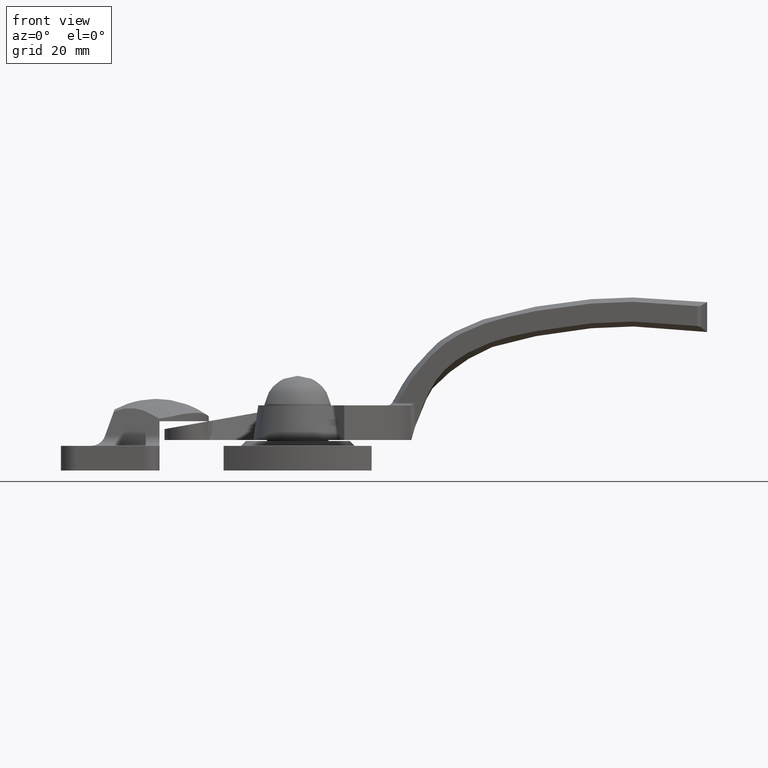
[diagram: clean part render]
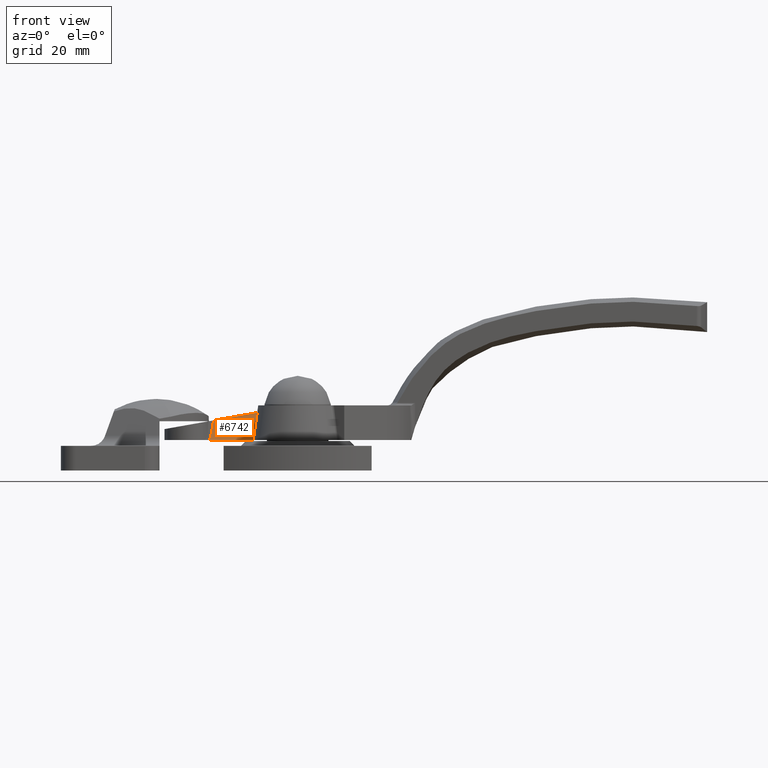
[diagram: same view with one face highlighted and labeled with its STEP entity id]
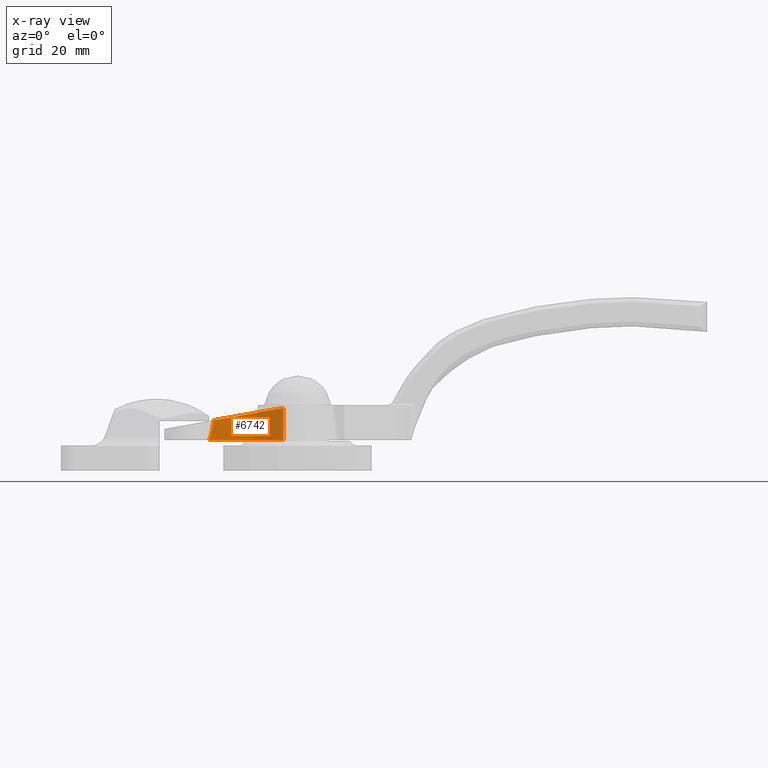
[diagram: x-ray of the same camera — body ghosted, the highlighted face saturated]
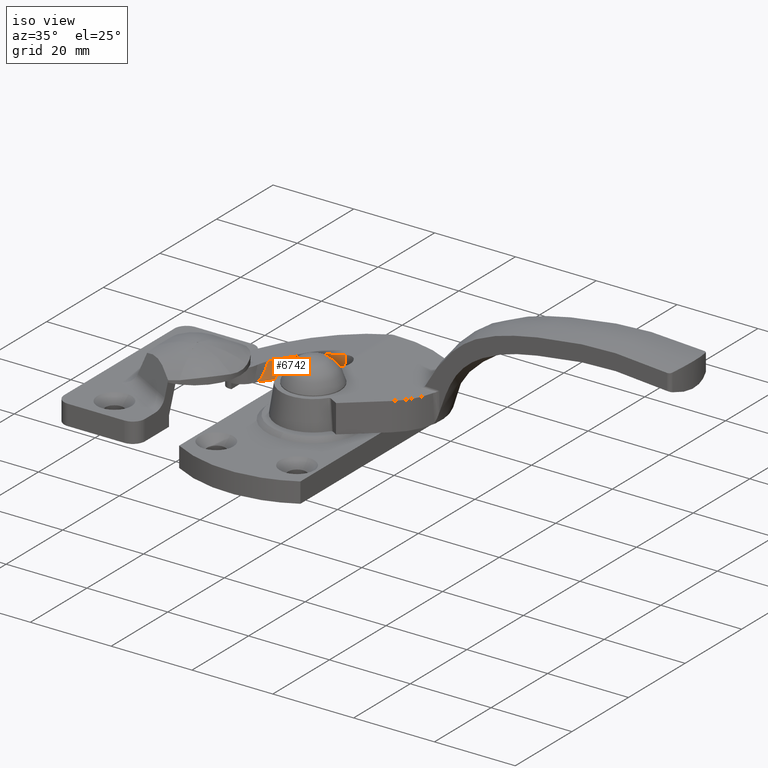
[diagram: same view with one face highlighted and labeled with its STEP entity id]
A machine part, front view. The second image highlights one B-rep face of the part: STEP entity #6742.
The next image is the same camera in x-ray: the body ghosted, the highlighted face saturated — about 44% of this face is hidden behind the body in this view.
A second angle (iso view) of the same face is appended — the face is thin or edge-on in the first view.
In plain terms, the highlighted face is a freeform B-spline surface patch.
Its self-contained STEP definition (entity closure, byte-faithful):
#4869=CARTESIAN_POINT('',(-17.076163127213551,8.429495878181800,10.164237666273220));
#4870=VERTEX_POINT('',#4869);
#4886=CARTESIAN_POINT('',(-2.863196534675405,15.543838575076050,12.690987282724381));
#4887=VERTEX_POINT('',#4886);
#4888=CARTESIAN_POINT('',(-2.863196534675405,15.543838575076050,12.690987282724381));
#4889=CARTESIAN_POINT('',(-11.793621976413393,15.628170107786737,11.103356093082112));
#4890=CARTESIAN_POINT('',(-17.076163127213551,8.429495878181800,10.164237666273220));
#4898=(BOUNDED_CURVE()B_SPLINE_CURVE(2,(#4888,#4889,#4890),.UNSPECIFIED.,.F.,.U.)CURVE()GEOMETRIC_REPRESENTATION_ITEM()QUASI_UNIFORM_CURVE()RATIONAL_B_SPLINE_CURVE((1.0,0.889902429095476,1.0))REPRESENTATION_ITEM(''));
#4899=EDGE_CURVE('',#4887,#4870,#4898,.T.);
#5756=CARTESIAN_POINT('',(-17.955857499309399,6.027619126815930,6.200000000000070));
#5757=VERTEX_POINT('',#5756);
#5890=CARTESIAN_POINT('',(-17.955857499309399,6.027619126815930,6.200000000000090));
#5891=CARTESIAN_POINT('',(-17.923315402197300,6.104210801785209,6.256730015336177));
#5892=CARTESIAN_POINT('',(-17.892595481295491,6.177434970584671,6.317703749125622));
#5893=CARTESIAN_POINT('',(-17.834103517941919,6.318399358176468,6.445989479342990));
#5894=CARTESIAN_POINT('',(-17.806312986439469,6.386185537750950,6.513354240951934));
#5895=CARTESIAN_POINT('',(-17.753079758566670,6.517433760712621,6.653256734695872));
#5896=CARTESIAN_POINT('',(-17.727639719599299,6.580890805373071,6.725800424147448));
#5897=CARTESIAN_POINT('',(-17.678714576271322,6.704227624212802,6.875172340763847));
#5898=CARTESIAN_POINT('',(-17.655184341278041,6.764226217513362,6.952176922848595));
#5899=CARTESIAN_POINT('',(-17.587612468722799,6.938331253498402,7.186747413324232));
#5900=CARTESIAN_POINT('',(-17.546413736282091,7.046958042499322,7.348147608506402));
#5901=CARTESIAN_POINT('',(-17.469482312341260,7.253786792694520,7.677994065227569));
#5902=CARTESIAN_POINT('',(-17.433772459614879,7.351943282906851,7.846470854873453));
#5903=CARTESIAN_POINT('',(-17.332945345437579,7.634572331386403,8.359923364624981));
#5904=CARTESIAN_POINT('',(-17.274032659251031,7.807400472127302,8.712789751351709));
#5905=CARTESIAN_POINT('',(-17.167159211990992,8.133217565296651,9.432044256052517));
#5906=CARTESIAN_POINT('',(-17.119553706756399,8.285201394065028,9.796641363137905));
#5907=CARTESIAN_POINT('',(-17.076163127213551,8.429495878181800,10.164237666273220));
#5908=B_SPLINE_CURVE_WITH_KNOTS('',3,(#5890,#5891,#5892,#5893,#5894,#5895,#5896,#5897,#5898,#5899,#5900,#5901,#5902,#5903,#5904,#5905,#5906,#5907),.UNSPECIFIED.,.F.,.U.,(4,2,2,2,2,2,2,2,4),(0.0,0.062500000000000,0.125000000000000,0.187500000000000,0.250000000000000,0.375000000000000,0.500000000000000,0.750000000000000,1.0),.UNSPECIFIED.);
#5909=EDGE_CURVE('',#5757,#4870,#5908,.T.);
#6183=CARTESIAN_POINT('',(-2.895497335638585,14.617129267199360,6.200000000000070));
#6184=VERTEX_POINT('',#6183);
#6200=CARTESIAN_POINT('',(-17.955857499309371,6.027619126815907,6.200000000000070));
#6201=CARTESIAN_POINT('',(-13.077556537935608,14.972028718853023,6.200000000000070));
#6202=CARTESIAN_POINT('',(-2.895497335638585,14.617129267199360,6.200000000000070));
#6210=(BOUNDED_CURVE()B_SPLINE_CURVE(2,(#6200,#6201,#6202),.UNSPECIFIED.,.F.,.U.)CURVE()GEOMETRIC_REPRESENTATION_ITEM()QUASI_UNIFORM_CURVE()RATIONAL_B_SPLINE_CURVE((1.0,0.850865636097619,1.0))REPRESENTATION_ITEM(''));
#6211=EDGE_CURVE('',#5757,#6184,#6210,.T.);
#6718=CARTESIAN_POINT('',(-18.216412930617508,5.478100126355654,6.037725317931962));
#6719=CARTESIAN_POINT('',(-19.088299990695930,5.912735878276060,12.857318831844189));
#6720=CARTESIAN_POINT('',(-13.211065743786179,15.518915738315146,6.037725317931961));
#6721=CARTESIAN_POINT('',(-13.787004561917810,16.547228935006839,12.857318831844186));
#6722=CARTESIAN_POINT('',(-2.034495606136561,14.541286681725312,6.037725317931963));
#6723=CARTESIAN_POINT('',(-1.949603884493737,15.511796175741795,12.857318831844184));
#6731=(BOUNDED_SURFACE()B_SPLINE_SURFACE(1,2,((#6718,#6720,#6722),(#6719,#6721,#6723)),.UNSPECIFIED.,.F.,.F.,.U.)B_SPLINE_SURFACE_WITH_KNOTS((2,2),(3,3),(0.0,6.888827982855525),(0.0,21.508723612513130),.UNSPECIFIED.)GEOMETRIC_REPRESENTATION_ITEM()RATIONAL_B_SPLINE_SURFACE(((1.0,0.823255046907557,0.991980169170225),(1.0,0.823255046907557,0.991980169170225)))REPRESENTATION_ITEM('')SURFACE());
#6732=ORIENTED_EDGE('',*,*,#5909,.F.);
#6733=ORIENTED_EDGE('',*,*,#6211,.T.);
#6734=CARTESIAN_POINT('',(-2.895497335638585,14.617129267199360,6.200000000000070));
#6735=CARTESIAN_POINT('',(-2.863196534675405,15.543838575076050,12.690987282724381));
#6736=QUASI_UNIFORM_CURVE('',1,(#6734,#6735),.UNSPECIFIED.,.F.,.U.);
#6737=EDGE_CURVE('',#6184,#4887,#6736,.T.);
#6738=ORIENTED_EDGE('',*,*,#6737,.T.);
#6739=ORIENTED_EDGE('',*,*,#4899,.T.);
#6740=EDGE_LOOP('',(#6732,#6733,#6738,#6739));
#6741=FACE_OUTER_BOUND('',#6740,.T.);
#6742=ADVANCED_FACE('',(#6741),#6731,.F.);